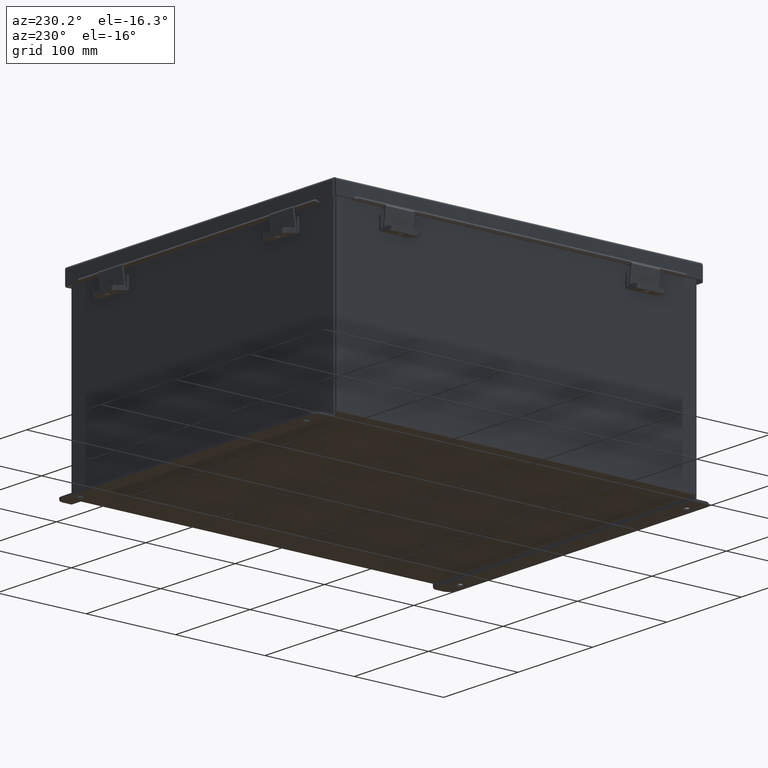
[diagram: clean part render]
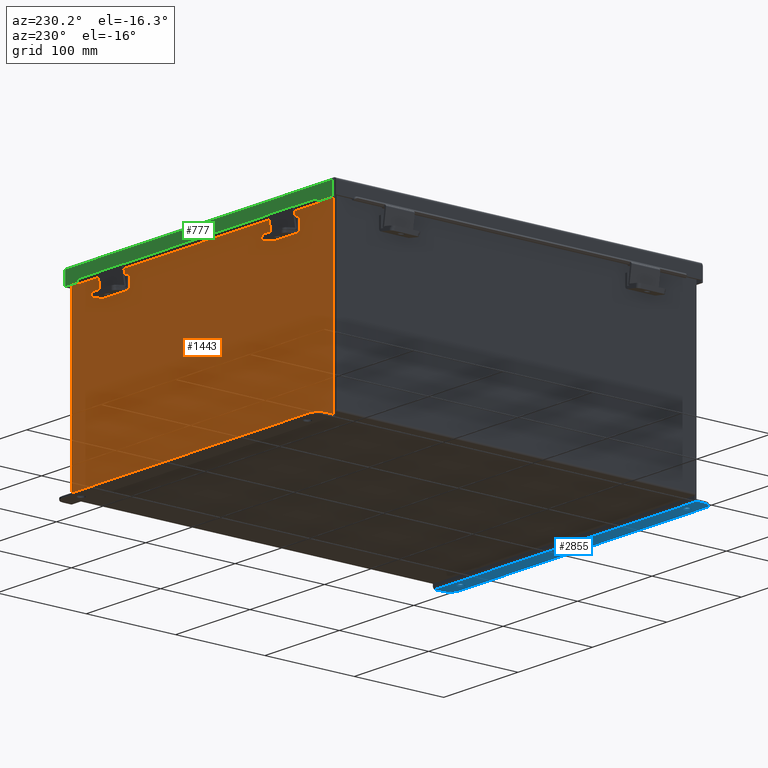
[diagram: same view with three faces highlighted in distinct colors, each labeled with its STEP entity id]
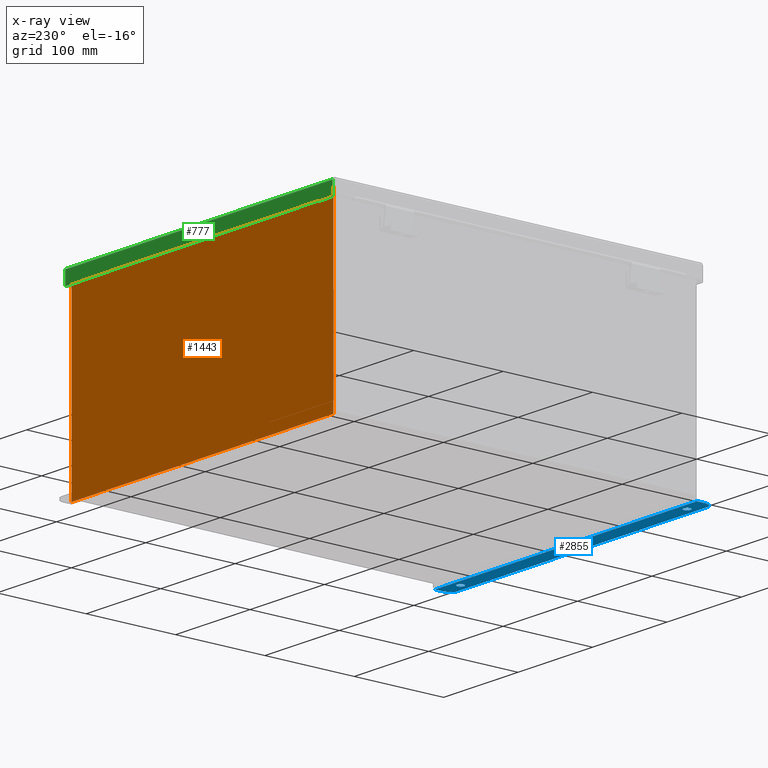
[diagram: x-ray of the same camera — body ghosted, the three highlighted faces saturated]
A machine part, auxiliary view with three faces highlighted in distinct colors.
The next image is the same camera in x-ray (body ghosted, the three faces saturated) — at least one of them is partly hidden behind the body in this view.
Their STEP definitions:

[orange] entity #1443 — the highlighted planar face has unit normal (0, -1, 0).
#135 = ORIENTED_EDGE ( 'NONE', *, *, #145, .F. ) ;
#145 = EDGE_CURVE ( 'NONE', #2061, #6518, #5399, .T. ) ;
#296 = CARTESIAN_POINT ( 'NONE',  ( 6.582299999999998300, 0.0000000000000000000, 3.912299999999998800 ) ) ;
#313 = EDGE_CURVE ( 'NONE', #8535, #2061, #8259, .T. ) ;
#367 = ORIENTED_EDGE ( 'NONE', *, *, #4349, .T. ) ;
#597 = VECTOR ( 'NONE', #5471, 39.37007874015748100 ) ;
#619 = AXIS2_PLACEMENT_3D ( 'NONE', #675, #2257, #1000 ) ;
#628 = ORIENTED_EDGE ( 'NONE', *, *, #313, .F. ) ;
#675 = CARTESIAN_POINT ( 'NONE',  ( -6.600974999999999100, 0.0000000000000000000, 3.874949999999998300 ) ) ;
#720 = DIRECTION ( 'NONE',  ( 0.0000000000000000000, -1.000000000000000000, 0.0000000000000000000 ) ) ;
#807 = EDGE_CURVE ( 'NONE', #2445, #1900, #7062, .T. ) ;
#1000 = DIRECTION ( 'NONE',  ( 0.0000000000000000000, 0.0000000000000000000, -1.000000000000000000 ) ) ;
#1001 = CARTESIAN_POINT ( 'NONE',  ( -6.925300000000000900, 0.0000000000000000000, 3.925299999999999600 ) ) ;
#1069 = ORIENTED_EDGE ( 'NONE', *, *, #1369, .F. ) ;
#1227 = LINE ( 'NONE', #7332, #2931 ) ;
#1230 = CARTESIAN_POINT ( 'NONE',  ( 6.619649999999913900, 0.0000000000000000000, -1.436952044667402300E-013 ) ) ;
#1286 = VERTEX_POINT ( 'NONE', #9767 ) ;
#1369 = EDGE_CURVE ( 'NONE', #1900, #4788, #4477, .T. ) ;
#1443 = ADVANCED_FACE ( 'NONE', ( #1571 ), #9215, .F. ) ;
#1571 = FACE_OUTER_BOUND ( 'NONE', #3361, .T. ) ;
#1649 = CARTESIAN_POINT ( 'NONE',  ( -6.582299999999999200, 0.0000000000000000000, 3.874949999999998300 ) ) ;
#1780 = DIRECTION ( 'NONE',  ( 1.000000000000000000, 8.208677865577646300E-017, -0.0000000000000000000 ) ) ;
#1899 = VECTOR ( 'NONE', #7084, 39.37007874015748100 ) ;
#1900 = VERTEX_POINT ( 'NONE', #8299 ) ;
#1937 = VERTEX_POINT ( 'NONE', #5277 ) ;
#1955 = CARTESIAN_POINT ( 'NONE',  ( 6.925299999999998200, 0.0000000000000000000, 3.925299999999999600 ) ) ;
#2061 = VERTEX_POINT ( 'NONE', #1649 ) ;
#2063 = LINE ( 'NONE', #8635, #3718 ) ;
#2257 = DIRECTION ( 'NONE',  ( -0.0000000000000000000, 1.000000000000000000, -0.0000000000000000000 ) ) ;
#2321 = LINE ( 'NONE', #1001, #597 ) ;
#2445 = VERTEX_POINT ( 'NONE', #5626 ) ;
#2458 = CARTESIAN_POINT ( 'NONE',  ( -6.925300000000000900, 0.0000000000000000000, 3.925299999999999600 ) ) ;
#2488 = DIRECTION ( 'NONE',  ( -0.0000000000000000000, -0.0000000000000000000, 1.000000000000000000 ) ) ;
#2519 = ORIENTED_EDGE ( 'NONE', *, *, #6718, .F. ) ;
#2793 = CARTESIAN_POINT ( 'NONE',  ( -6.582299999999999200, 2.185478394931410600E-015, 3.912299999999998800 ) ) ;
#2931 = VECTOR ( 'NONE', #9688, 39.37007874015748100 ) ;
#3129 = ORIENTED_EDGE ( 'NONE', *, *, #4639, .F. ) ;
#3185 = VERTEX_POINT ( 'NONE', #2458 ) ;
#3361 = EDGE_LOOP ( 'NONE', ( #7115, #135, #628, #5343, #1069, #7239, #2519, #4941, #4244, #3129, #367, #4269 ) ) ;
#3416 = VECTOR ( 'NONE', #5774, 39.37007874015748100 ) ;
#3596 = CARTESIAN_POINT ( 'NONE',  ( 0.0000000000000000000, 0.0000000000000000000, 0.0000000000000000000 ) ) ;
#3718 = VECTOR ( 'NONE', #2488, 39.37007874015748100 ) ;
#3731 = CARTESIAN_POINT ( 'NONE',  ( -6.925299999999999100, -1.092739197465705300E-015, -4.099300000000000400 ) ) ;
#3797 = DIRECTION ( 'NONE',  ( 0.0000000000000000000, 0.0000000000000000000, -1.000000000000000000 ) ) ;
#4244 = ORIENTED_EDGE ( 'NONE', *, *, #6690, .T. ) ;
#4269 = ORIENTED_EDGE ( 'NONE', *, *, #9768, .T. ) ;
#4311 = CARTESIAN_POINT ( 'NONE',  ( 6.600974999999997400, 0.0000000000000000000, 3.874949999999998300 ) ) ;
#4349 = EDGE_CURVE ( 'NONE', #6550, #3185, #2063, .T. ) ;
#4477 = LINE ( 'NONE', #9607, #5681 ) ;
#4606 = VERTEX_POINT ( 'NONE', #7552 ) ;
#4639 = EDGE_CURVE ( 'NONE', #6550, #8193, #6262, .T. ) ;
#4788 = VERTEX_POINT ( 'NONE', #296 ) ;
#4804 = VECTOR ( 'NONE', #9496, 39.37007874015748100 ) ;
#4941 = ORIENTED_EDGE ( 'NONE', *, *, #6484, .T. ) ;
#4978 = CARTESIAN_POINT ( 'NONE',  ( -6.582299999999999200, 0.0000000000000000000, 0.0000000000000000000 ) ) ;
#5052 = DIRECTION ( 'NONE',  ( 0.0000000000000000000, 0.0000000000000000000, 1.000000000000000000 ) ) ;
#5277 = CARTESIAN_POINT ( 'NONE',  ( 6.925299999999998200, 0.0000000000000000000, 3.925299999999999600 ) ) ;
#5343 = ORIENTED_EDGE ( 'NONE', *, *, #7132, .T. ) ;
#5399 = CIRCLE ( 'NONE', #619, 0.01867500000000003900 ) ;
#5471 = DIRECTION ( 'NONE',  ( 1.000000000000000000, 0.0000000000000000000, 3.944735958968222700E-017 ) ) ;
#5626 = CARTESIAN_POINT ( 'NONE',  ( 6.619649999999997400, 0.0000000000000000000, 3.874949999999998300 ) ) ;
#5681 = VECTOR ( 'NONE', #5052, 39.37007874015748100 ) ;
#5703 = LINE ( 'NONE', #1955, #9819 ) ;
#5774 = DIRECTION ( 'NONE',  ( -2.170286390199955400E-014, 0.0000000000000000000, -1.000000000000000000 ) ) ;
#5936 = LINE ( 'NONE', #7858, #1899 ) ;
#6042 = DIRECTION ( 'NONE',  ( -0.0000000000000000000, 1.000000000000000000, -0.0000000000000000000 ) ) ;
#6176 = CARTESIAN_POINT ( 'NONE',  ( -6.619649999999999100, 0.0000000000000000000, 3.874949999999998300 ) ) ;
#6262 = LINE ( 'NONE', #8662, #8128 ) ;
#6484 = EDGE_CURVE ( 'NONE', #1286, #1937, #8305, .T. ) ;
#6518 = VERTEX_POINT ( 'NONE', #6176 ) ;
#6550 = VERTEX_POINT ( 'NONE', #3731 ) ;
#6643 = CARTESIAN_POINT ( 'NONE',  ( 6.925299999999998200, 0.0000000000000000000, -4.099300000000000400 ) ) ;
#6690 = EDGE_CURVE ( 'NONE', #1937, #8193, #5703, .T. ) ;
#6718 = EDGE_CURVE ( 'NONE', #1286, #2445, #9556, .T. ) ;
#6761 = EDGE_CURVE ( 'NONE', #6518, #4606, #1227, .T. ) ;
#7062 = CIRCLE ( 'NONE', #9543, 0.01867500000000003900 ) ;
#7084 = DIRECTION ( 'NONE',  ( 1.000000000000000000, 0.0000000000000000000, 0.0000000000000000000 ) ) ;
#7115 = ORIENTED_EDGE ( 'NONE', *, *, #6761, .F. ) ;
#7132 = EDGE_CURVE ( 'NONE', #8535, #4788, #5936, .T. ) ;
#7239 = ORIENTED_EDGE ( 'NONE', *, *, #807, .F. ) ;
#7267 = DIRECTION ( 'NONE',  ( 0.0000000000000000000, 0.0000000000000000000, -1.000000000000000000 ) ) ;
#7332 = CARTESIAN_POINT ( 'NONE',  ( -6.619649999999999100, 0.0000000000000000000, 0.0000000000000000000 ) ) ;
#7552 = CARTESIAN_POINT ( 'NONE',  ( -6.619649999999999100, 0.0000000000000000000, 3.925299999999999600 ) ) ;
#7650 = DIRECTION ( 'NONE',  ( 0.0000000000000000000, -0.0000000000000000000, -1.000000000000000000 ) ) ;
#7760 = CARTESIAN_POINT ( 'NONE',  ( -6.925300000000000900, 0.0000000000000000000, 3.925299999999999600 ) ) ;
#7830 = DIRECTION ( 'NONE',  ( 1.000000000000000000, 0.0000000000000000000, 3.944735958968222700E-017 ) ) ;
#7837 = VECTOR ( 'NONE', #7830, 39.37007874015748100 ) ;
#7858 = CARTESIAN_POINT ( 'NONE',  ( -6.582300000000000000, 2.185478394931410600E-015, 3.912299999999998800 ) ) ;
#8128 = VECTOR ( 'NONE', #1780, 39.37007874015748100 ) ;
#8193 = VERTEX_POINT ( 'NONE', #6643 ) ;
#8259 = LINE ( 'NONE', #4978, #4804 ) ;
#8299 = CARTESIAN_POINT ( 'NONE',  ( 6.582299999999998300, 0.0000000000000000000, 3.874949999999998300 ) ) ;
#8305 = LINE ( 'NONE', #7760, #7837 ) ;
#8535 = VERTEX_POINT ( 'NONE', #2793 ) ;
#8635 = CARTESIAN_POINT ( 'NONE',  ( -6.925300000000000900, 0.0000000000000000000, 3.925299999999999600 ) ) ;
#8662 = CARTESIAN_POINT ( 'NONE',  ( -6.925300000000000900, -1.092739197465705300E-015, -4.099300000000000400 ) ) ;
#8809 = AXIS2_PLACEMENT_3D ( 'NONE', #3596, #720, #7650 ) ;
#9215 = PLANE ( 'NONE',  #8809 ) ;
#9496 = DIRECTION ( 'NONE',  ( 0.0000000000000000000, 0.0000000000000000000, -1.000000000000000000 ) ) ;
#9543 = AXIS2_PLACEMENT_3D ( 'NONE', #4311, #6042, #3797 ) ;
#9556 = LINE ( 'NONE', #1230, #3416 ) ;
#9607 = CARTESIAN_POINT ( 'NONE',  ( 6.582299999999998300, 0.0000000000000000000, 0.0000000000000000000 ) ) ;
#9688 = DIRECTION ( 'NONE',  ( 0.0000000000000000000, 0.0000000000000000000, 1.000000000000000000 ) ) ;
#9767 = CARTESIAN_POINT ( 'NONE',  ( 6.619649999999999100, 0.0000000000000000000, 3.925299999999999600 ) ) ;
#9768 = EDGE_CURVE ( 'NONE', #3185, #4606, #2321, .T. ) ;
#9819 = VECTOR ( 'NONE', #7267, 39.37007874015748100 ) ;

[blue] entity #2855 — the highlighted planar face has unit normal (0, -0, 1).
#44 = CARTESIAN_POINT ( 'NONE',  ( 6.925299999999998200, 0.01300000000000010700, -4.186999999999995800 ) ) ;
#149 = EDGE_CURVE ( 'NONE', #5258, #9433, #3149, .T. ) ;
#152 = CARTESIAN_POINT ( 'NONE',  ( -5.987800000000000000, 0.3627999999999997300, -4.186999999999996700 ) ) ;
#187 = AXIS2_PLACEMENT_3D ( 'NONE', #1844, #7138, #2567 ) ;
#289 = VERTEX_POINT ( 'NONE', #2996 ) ;
#329 = AXIS2_PLACEMENT_3D ( 'NONE', #992, #5060, #2982 ) ;
#471 = EDGE_CURVE ( 'NONE', #2479, #6877, #2203, .T. ) ;
#634 = CARTESIAN_POINT ( 'NONE',  ( -6.550299999999998200, 0.7378000000000086700, -4.186999999999998500 ) ) ;
#688 = LINE ( 'NONE', #7335, #9587 ) ;
#727 = CIRCLE ( 'NONE', #187, 0.3750000000000000600 ) ;
#992 = CARTESIAN_POINT ( 'NONE',  ( -6.550299999999998200, 0.3628000000000085000, -4.187000000000001200 ) ) ;
#1015 = AXIS2_PLACEMENT_3D ( 'NONE', #6405, #5566, #5305 ) ;
#1036 = DIRECTION ( 'NONE',  ( 4.919856193148104900E-031, 1.000000000000000000, -3.702694488566362300E-015 ) ) ;
#1414 = ORIENTED_EDGE ( 'NONE', *, *, #9201, .T. ) ;
#1704 = FACE_BOUND ( 'NONE', #6409, .T. ) ;
#1844 = CARTESIAN_POINT ( 'NONE',  ( 6.550299999999998200, 0.3627999999999997300, -4.186999999999996700 ) ) ;
#1845 = EDGE_CURVE ( 'NONE', #289, #8773, #7060, .T. ) ;
#1882 = VECTOR ( 'NONE', #6475, 39.37007874015748100 ) ;
#2108 = ORIENTED_EDGE ( 'NONE', *, *, #5579, .T. ) ;
#2203 = CIRCLE ( 'NONE', #1015, 0.1560000000000001900 ) ;
#2300 = CARTESIAN_POINT ( 'NONE',  ( 6.550299999999998200, 0.7378000000000000100, -4.187000000000002900 ) ) ;
#2333 = LINE ( 'NONE', #4157, #1882 ) ;
#2441 = VERTEX_POINT ( 'NONE', #634 ) ;
#2442 = CIRCLE ( 'NONE', #4358, 0.1560000000000001900 ) ;
#2454 = ORIENTED_EDGE ( 'NONE', *, *, #1845, .T. ) ;
#2469 = CARTESIAN_POINT ( 'NONE',  ( 5.987799999999998200, 0.3628000000000085000, -4.187000000000001200 ) ) ;
#2479 = VERTEX_POINT ( 'NONE', #5851 ) ;
#2567 = DIRECTION ( 'NONE',  ( 0.0000000000000000000, -1.000000000000000000, 4.370956789862820400E-015 ) ) ;
#2602 = CARTESIAN_POINT ( 'NONE',  ( 5.987799999999998200, 0.3628000000000085000, -4.187000000000001200 ) ) ;
#2855 = ADVANCED_FACE ( 'NONE', ( #7530, #1704, #5163 ), #9655, .F. ) ;
#2938 = EDGE_CURVE ( 'NONE', #5258, #8773, #688, .T. ) ;
#2972 = CARTESIAN_POINT ( 'NONE',  ( 6.925299999999998200, -1.420560956705417000E-014, -4.186999999999995800 ) ) ;
#2982 = DIRECTION ( 'NONE',  ( 0.0000000000000000000, -1.000000000000000000, 4.370956789862820400E-015 ) ) ;
#2996 = CARTESIAN_POINT ( 'NONE',  ( 6.925299999999998200, 0.3627999999999997300, -4.187000000000001200 ) ) ;
#3149 = LINE ( 'NONE', #5761, #4918 ) ;
#3225 = DIRECTION ( 'NONE',  ( 0.0000000000000000000, 1.000000000000000000, -3.502369222646487000E-015 ) ) ;
#3243 = VECTOR ( 'NONE', #9147, 39.37007874015748100 ) ;
#3367 = DIRECTION ( 'NONE',  ( 0.0000000000000000000, 1.000000000000000000, -3.502369222646487000E-015 ) ) ;
#3533 = ORIENTED_EDGE ( 'NONE', *, *, #8191, .F. ) ;
#4039 = CIRCLE ( 'NONE', #9642, 0.1560000000000001900 ) ;
#4043 = CARTESIAN_POINT ( 'NONE',  ( 5.987799999999998200, 0.5188000000000087000, -4.187000000000001200 ) ) ;
#4078 = VERTEX_POINT ( 'NONE', #2300 ) ;
#4145 = ORIENTED_EDGE ( 'NONE', *, *, #149, .T. ) ;
#4157 = CARTESIAN_POINT ( 'NONE',  ( -2.035385365534024800E-024, 0.7378000000000000100, -4.187000000000002900 ) ) ;
#4358 = AXIS2_PLACEMENT_3D ( 'NONE', #2602, #7947, #3367 ) ;
#4834 = ORIENTED_EDGE ( 'NONE', *, *, #7978, .F. ) ;
#4913 = EDGE_CURVE ( 'NONE', #6877, #2479, #4039, .T. ) ;
#4918 = VECTOR ( 'NONE', #1036, 39.37007874015748100 ) ;
#5046 = DIRECTION ( 'NONE',  ( 0.0000000000000000000, 1.000000000000000000, -3.502369222646487000E-015 ) ) ;
#5060 = DIRECTION ( 'NONE',  ( -0.0000000000000000000, -3.702694488566362300E-015, -1.000000000000000000 ) ) ;
#5163 = FACE_OUTER_BOUND ( 'NONE', #7457, .T. ) ;
#5195 = CARTESIAN_POINT ( 'NONE',  ( -5.987800000000000000, 0.2067999999999996000, -4.186999999999995800 ) ) ;
#5258 = VERTEX_POINT ( 'NONE', #5900 ) ;
#5305 = DIRECTION ( 'NONE',  ( 0.0000000000000000000, 1.000000000000000000, -3.502369222646487000E-015 ) ) ;
#5466 = ORIENTED_EDGE ( 'NONE', *, *, #7950, .T. ) ;
#5566 = DIRECTION ( 'NONE',  ( 0.0000000000000000000, -3.362274453740631800E-015, -1.000000000000000000 ) ) ;
#5579 = EDGE_CURVE ( 'NONE', #9433, #2441, #8439, .T. ) ;
#5635 = DIRECTION ( 'NONE',  ( 0.0000000000000000000, -3.362274453740631800E-015, -1.000000000000000000 ) ) ;
#5761 = CARTESIAN_POINT ( 'NONE',  ( -6.925300000000000900, -6.556435184794231700E-015, -4.187000000000000300 ) ) ;
#5851 = CARTESIAN_POINT ( 'NONE',  ( -5.987800000000000000, 0.5187999999999999300, -4.186999999999996700 ) ) ;
#5900 = CARTESIAN_POINT ( 'NONE',  ( -6.925299999999999100, 0.01300000000000885000, -4.187000000000000300 ) ) ;
#5940 = CARTESIAN_POINT ( 'NONE',  ( -6.925300000000000900, 0.3628000000000085000, -4.186999999999996700 ) ) ;
#6405 = CARTESIAN_POINT ( 'NONE',  ( -5.987800000000000000, 0.3627999999999997300, -4.186999999999996700 ) ) ;
#6409 = EDGE_LOOP ( 'NONE', ( #3533, #4834 ) ) ;
#6475 = DIRECTION ( 'NONE',  ( 1.000000000000000000, 4.910036603141682400E-031, 0.0000000000000000000 ) ) ;
#6477 = DIRECTION ( 'NONE',  ( 1.000000000000000000, 4.910036603141682400E-031, -0.0000000000000000000 ) ) ;
#6556 = ORIENTED_EDGE ( 'NONE', *, *, #4913, .F. ) ;
#6626 = CIRCLE ( 'NONE', #8236, 0.1560000000000001900 ) ;
#6736 = DIRECTION ( 'NONE',  ( 0.0000000000000000000, 3.702694488566362300E-015, 1.000000000000000000 ) ) ;
#6877 = VERTEX_POINT ( 'NONE', #5195 ) ;
#7060 = LINE ( 'NONE', #2972, #3243 ) ;
#7099 = ORIENTED_EDGE ( 'NONE', *, *, #2938, .F. ) ;
#7138 = DIRECTION ( 'NONE',  ( -0.0000000000000000000, -3.702694488566362300E-015, -1.000000000000000000 ) ) ;
#7151 = VERTEX_POINT ( 'NONE', #4043 ) ;
#7335 = CARTESIAN_POINT ( 'NONE',  ( 6.925299999999998200, 0.01300000000000120000, -4.186999999999995800 ) ) ;
#7457 = EDGE_LOOP ( 'NONE', ( #4145, #2108, #1414, #5466, #2454, #7099 ) ) ;
#7530 = FACE_BOUND ( 'NONE', #9296, .T. ) ;
#7628 = CARTESIAN_POINT ( 'NONE',  ( -2.035385365534024800E-024, -6.556435184794231700E-015, -4.187000000000000300 ) ) ;
#7803 = DIRECTION ( 'NONE',  ( 0.0000000000000000000, -3.362274453740631800E-015, -1.000000000000000000 ) ) ;
#7947 = DIRECTION ( 'NONE',  ( 0.0000000000000000000, -3.362274453740631800E-015, -1.000000000000000000 ) ) ;
#7950 = EDGE_CURVE ( 'NONE', #4078, #289, #727, .T. ) ;
#7957 = ORIENTED_EDGE ( 'NONE', *, *, #471, .F. ) ;
#7978 = EDGE_CURVE ( 'NONE', #8077, #7151, #2442, .T. ) ;
#8077 = VERTEX_POINT ( 'NONE', #9590 ) ;
#8191 = EDGE_CURVE ( 'NONE', #7151, #8077, #6626, .T. ) ;
#8236 = AXIS2_PLACEMENT_3D ( 'NONE', #2469, #7803, #3225 ) ;
#8439 = CIRCLE ( 'NONE', #329, 0.3750000000000000600 ) ;
#8667 = DIRECTION ( 'NONE',  ( -4.919856193148104900E-031, -1.000000000000000000, 3.702694488566362300E-015 ) ) ;
#8698 = AXIS2_PLACEMENT_3D ( 'NONE', #7628, #6736, #8667 ) ;
#8773 = VERTEX_POINT ( 'NONE', #44 ) ;
#9147 = DIRECTION ( 'NONE',  ( -4.919856193148104900E-031, -1.000000000000000000, 3.702694488566362300E-015 ) ) ;
#9201 = EDGE_CURVE ( 'NONE', #2441, #4078, #2333, .T. ) ;
#9296 = EDGE_LOOP ( 'NONE', ( #7957, #6556 ) ) ;
#9433 = VERTEX_POINT ( 'NONE', #5940 ) ;
#9587 = VECTOR ( 'NONE', #6477, 39.37007874015748100 ) ;
#9590 = CARTESIAN_POINT ( 'NONE',  ( 5.987799999999998200, 0.2068000000000083400, -4.187000000000000300 ) ) ;
#9642 = AXIS2_PLACEMENT_3D ( 'NONE', #152, #5635, #5046 ) ;
#9655 = PLANE ( 'NONE',  #8698 ) ;

[green] entity #777 — the highlighted planar face has unit normal (-0, -1, -0).
#32 = LINE ( 'NONE', #9747, #2008 ) ;
#72 = EDGE_CURVE ( 'NONE', #8551, #9820, #3034, .T. ) ;
#83 = ORIENTED_EDGE ( 'NONE', *, *, #7448, .T. ) ;
#283 = LINE ( 'NONE', #6565, #2595 ) ;
#777 = ADVANCED_FACE ( 'NONE', ( #3495 ), #3224, .F. ) ;
#912 = ORIENTED_EDGE ( 'NONE', *, *, #8723, .F. ) ;
#1025 = CARTESIAN_POINT ( 'NONE',  ( 7.074478932188153400, 8.156250000000000000, 0.01300000000000010700 ) ) ;
#1313 = DIRECTION ( 'NONE',  ( 1.000000000000000000, 3.215354715836458000E-030, 4.771786888496653900E-018 ) ) ;
#1515 = CARTESIAN_POINT ( 'NONE',  ( 6.324478932188153400, 8.156250000000005300, 0.6123000000000005100 ) ) ;
#1796 = EDGE_CURVE ( 'NONE', #7801, #3986, #283, .T. ) ;
#1908 = DIRECTION ( 'NONE',  ( -0.0000000000000000000, 3.569293475308532400E-015, 1.000000000000000000 ) ) ;
#2008 = VECTOR ( 'NONE', #3590, 39.37007874015748100 ) ;
#2090 = VECTOR ( 'NONE', #1908, 39.37007874015748100 ) ;
#2292 = CARTESIAN_POINT ( 'NONE',  ( 0.0000000000000000000, 8.156250000000000000, -2.950395833157404200E-014 ) ) ;
#2582 = DIRECTION ( 'NONE',  ( 0.0000000000000000000, -3.569293475308532400E-015, -1.000000000000000000 ) ) ;
#2587 = EDGE_CURVE ( 'NONE', #6743, #9820, #9505, .T. ) ;
#2595 = VECTOR ( 'NONE', #2769, 39.37007874015748100 ) ;
#2723 = CARTESIAN_POINT ( 'NONE',  ( 6.324478932188149800, 8.156250000000003600, 0.5967115427318793200 ) ) ;
#2768 = EDGE_CURVE ( 'NONE', #3925, #3986, #7519, .T. ) ;
#2769 = DIRECTION ( 'NONE',  ( 1.000000000000000000, 3.215354715836458000E-030, 4.771786888496653900E-018 ) ) ;
#3028 = ORIENTED_EDGE ( 'NONE', *, *, #8694, .F. ) ;
#3029 = VECTOR ( 'NONE', #4184, 39.37007874015748100 ) ;
#3034 = LINE ( 'NONE', #7146, #5921 ) ;
#3224 = PLANE ( 'NONE',  #8796 ) ;
#3270 = CARTESIAN_POINT ( 'NONE',  ( -6.324478932188148900, 8.156250000000003600, 0.6122999999999994000 ) ) ;
#3495 = FACE_OUTER_BOUND ( 'NONE', #5206, .T. ) ;
#3507 = ORIENTED_EDGE ( 'NONE', *, *, #2587, .F. ) ;
#3509 = ORIENTED_EDGE ( 'NONE', *, *, #4837, .F. ) ;
#3590 = DIRECTION ( 'NONE',  ( 0.0000000000000000000, 3.569293475308532400E-015, 1.000000000000000000 ) ) ;
#3606 = CARTESIAN_POINT ( 'NONE',  ( -7.074478932188148900, 8.156250000000003600, 0.6122999999999994000 ) ) ;
#3632 = VERTEX_POINT ( 'NONE', #2723 ) ;
#3907 = CARTESIAN_POINT ( 'NONE',  ( -7.074478932188148900, 8.156250000000000000, 0.01300000000000010700 ) ) ;
#3925 = VERTEX_POINT ( 'NONE', #1025 ) ;
#3935 = CARTESIAN_POINT ( 'NONE',  ( 6.324478932188153400, 8.156250000000003600, 0.6123000000000005100 ) ) ;
#3986 = VERTEX_POINT ( 'NONE', #5843 ) ;
#4184 = DIRECTION ( 'NONE',  ( 0.0000000000000000000, 1.401985044024023600E-013, 1.000000000000000000 ) ) ;
#4375 = ORIENTED_EDGE ( 'NONE', *, *, #72, .T. ) ;
#4478 = DIRECTION ( 'NONE',  ( 1.000000000000000000, 3.191323508412550700E-030, -0.0000000000000000000 ) ) ;
#4785 = VECTOR ( 'NONE', #6767, 39.37007874015748100 ) ;
#4837 = EDGE_CURVE ( 'NONE', #9684, #3925, #6789, .T. ) ;
#5206 = EDGE_LOOP ( 'NONE', ( #912, #5977, #5329, #3509, #83, #4375, #3507, #3028 ) ) ;
#5236 = CARTESIAN_POINT ( 'NONE',  ( 6.324478932188153400, 8.156250000000001800, 0.5967115427318793200 ) ) ;
#5329 = ORIENTED_EDGE ( 'NONE', *, *, #2768, .F. ) ;
#5843 = CARTESIAN_POINT ( 'NONE',  ( 7.074478932188153400, 8.156250000000003600, 0.6123000000000005100 ) ) ;
#5921 = VECTOR ( 'NONE', #1313, 39.37007874015748100 ) ;
#5977 = ORIENTED_EDGE ( 'NONE', *, *, #1796, .T. ) ;
#6565 = CARTESIAN_POINT ( 'NONE',  ( -1.067128122525102800E-017, 8.156250000000003600, 0.6122999999999994000 ) ) ;
#6613 = LINE ( 'NONE', #1515, #8627 ) ;
#6742 = CARTESIAN_POINT ( 'NONE',  ( 7.156250000000018700, 8.156250000000000000, 0.01300000000000010700 ) ) ;
#6743 = VERTEX_POINT ( 'NONE', #7302 ) ;
#6767 = DIRECTION ( 'NONE',  ( -1.000000000000000000, -3.215975411700707400E-030, -0.0000000000000000000 ) ) ;
#6789 = LINE ( 'NONE', #6742, #7028 ) ;
#6793 = DIRECTION ( 'NONE',  ( -2.102977566036095800E-013, -2.102977566036089200E-013, -1.000000000000000000 ) ) ;
#7002 = DIRECTION ( 'NONE',  ( -3.372195227344556400E-030, -1.000000000000000000, 3.569293475308532400E-015 ) ) ;
#7028 = VECTOR ( 'NONE', #4478, 39.37007874015748100 ) ;
#7146 = CARTESIAN_POINT ( 'NONE',  ( -1.067128122525102800E-017, 8.156250000000003600, 0.6122999999999994000 ) ) ;
#7302 = CARTESIAN_POINT ( 'NONE',  ( -6.324478932188148900, 8.156250000000003600, 0.5967115427318782100 ) ) ;
#7369 = CARTESIAN_POINT ( 'NONE',  ( 7.074478932188153400, 8.156250000000000000, 0.0000000000000000000 ) ) ;
#7448 = EDGE_CURVE ( 'NONE', #9684, #8551, #32, .T. ) ;
#7519 = LINE ( 'NONE', #7369, #2090 ) ;
#7801 = VERTEX_POINT ( 'NONE', #3935 ) ;
#8551 = VERTEX_POINT ( 'NONE', #3606 ) ;
#8627 = VECTOR ( 'NONE', #6793, 39.37007874015748100 ) ;
#8694 = EDGE_CURVE ( 'NONE', #3632, #6743, #8886, .T. ) ;
#8723 = EDGE_CURVE ( 'NONE', #7801, #3632, #6613, .T. ) ;
#8796 = AXIS2_PLACEMENT_3D ( 'NONE', #2292, #7002, #2582 ) ;
#8869 = CARTESIAN_POINT ( 'NONE',  ( -6.324478932188148900, 8.156250000000001800, 0.5967115427318782100 ) ) ;
#8886 = LINE ( 'NONE', #5236, #4785 ) ;
#9505 = LINE ( 'NONE', #8869, #3029 ) ;
#9684 = VERTEX_POINT ( 'NONE', #3907 ) ;
#9747 = CARTESIAN_POINT ( 'NONE',  ( -7.074478932188150700, 8.156250000000000000, -2.950395833157404200E-014 ) ) ;
#9820 = VERTEX_POINT ( 'NONE', #3270 ) ;